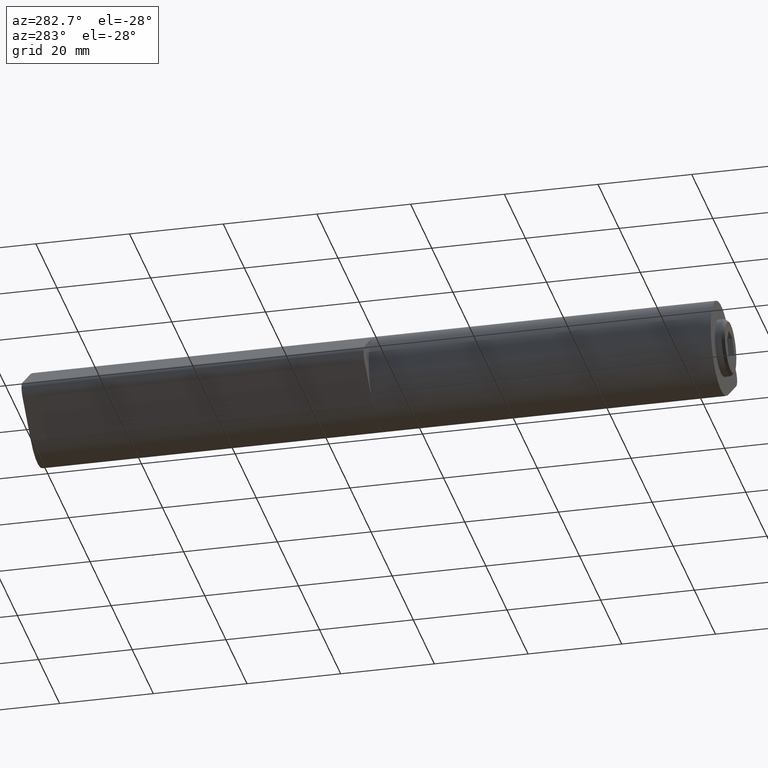
[diagram: clean part render]
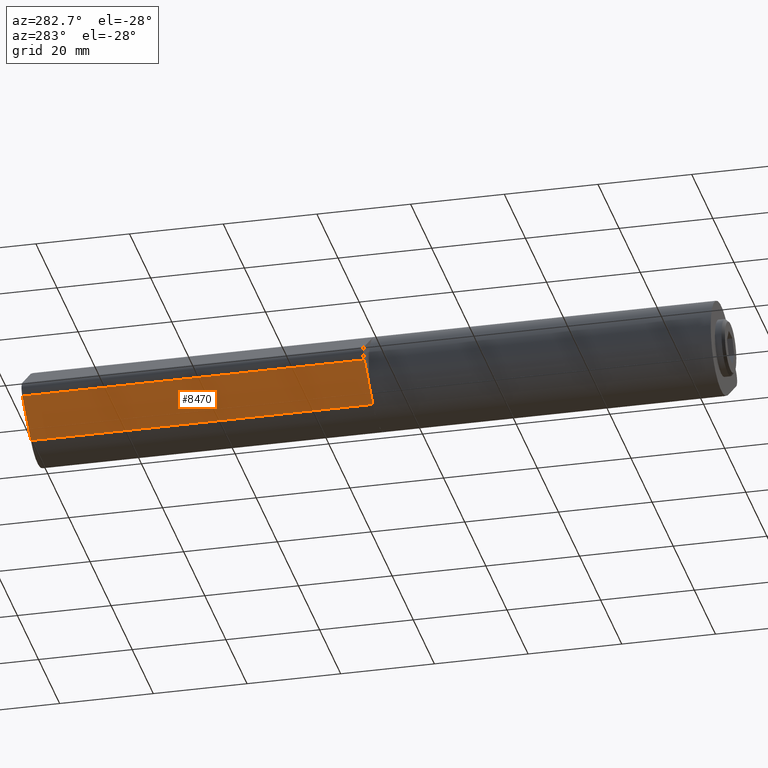
[diagram: same view with one face highlighted and labeled with its STEP entity id]
A machine part, auxiliary view. The second image highlights one B-rep face of the part: STEP entity #8470.
In plain terms, the highlighted planar face has unit normal (0.6154, 0, 0.7882).
Its self-contained STEP definition (entity closure, byte-faithful):
#235 = CARTESIAN_POINT ( 'NONE',  ( 6.153846153846156852, -36.50000000000000000, -7.882269819968920288 ) ) ;
#426 = VERTEX_POINT ( 'NONE', #10888 ) ;
#618 = CARTESIAN_POINT ( 'NONE',  ( 14.23076923076923173, 36.50000000000000000, -1.576453963993785123 ) ) ;
#1042 = EDGE_LOOP ( 'NONE', ( #4831, #10454, #3121, #1323 ) ) ;
#1323 = ORIENTED_EDGE ( 'NONE', *, *, #10942, .T. ) ;
#1360 = EDGE_CURVE ( 'NONE', #426, #13568, #3267, .T. ) ;
#2800 = LINE ( 'NONE', #11524, #8769 ) ;
#3121 = ORIENTED_EDGE ( 'NONE', *, *, #4294, .F. ) ;
#3267 = LINE ( 'NONE', #12746, #11876 ) ;
#3570 = VECTOR ( 'NONE', #8315, 1000.000000000000000 ) ;
#4265 = CARTESIAN_POINT ( 'NONE',  ( 14.23076923076923173, -36.50000000000000000, -1.576453963993785123 ) ) ;
#4294 = EDGE_CURVE ( 'NONE', #10541, #426, #5575, .T. ) ;
#4831 = ORIENTED_EDGE ( 'NONE', *, *, #9082, .T. ) ;
#5575 = LINE ( 'NONE', #9453, #3570 ) ;
#6068 = PLANE ( 'NONE',  #6812 ) ;
#6379 = FACE_OUTER_BOUND ( 'NONE', #1042, .T. ) ;
#6812 = AXIS2_PLACEMENT_3D ( 'NONE', #618, #6925, #8024 ) ;
#6925 = DIRECTION ( 'NONE',  ( -0.6153846153846154188, 0.000000000000000000, 0.7882269819968922286 ) ) ;
#7483 = DIRECTION ( 'NONE',  ( -0.000000000000000000, -1.000000000000000000, -0.000000000000000000 ) ) ;
#8024 = DIRECTION ( 'NONE',  ( 0.7882269819968922286, 0.000000000000000000, 0.6153846153846154188 ) ) ;
#8315 = DIRECTION ( 'NONE',  ( -0.7882269819968921176, 0.000000000000000000, -0.6153846153846154188 ) ) ;
#8470 = ADVANCED_FACE ( 'NONE', ( #6379 ), #6068, .F. ) ;
#8739 = DIRECTION ( 'NONE',  ( -0.7882269819968921176, 0.000000000000000000, -0.6153846153846154188 ) ) ;
#8769 = VECTOR ( 'NONE', #9340, 1000.000000000000000 ) ;
#9082 = EDGE_CURVE ( 'NONE', #12700, #13568, #9116, .T. ) ;
#9116 = LINE ( 'NONE', #4265, #11118 ) ;
#9340 = DIRECTION ( 'NONE',  ( -0.000000000000000000, -1.000000000000000000, -0.000000000000000000 ) ) ;
#9453 = CARTESIAN_POINT ( 'NONE',  ( 14.23076923076923173, 36.50000000000000000, -1.576453963993785123 ) ) ;
#9668 = CARTESIAN_POINT ( 'NONE',  ( 14.23076923076923173, -36.50000000000000000, -1.576453963993785123 ) ) ;
#10454 = ORIENTED_EDGE ( 'NONE', *, *, #1360, .F. ) ;
#10541 = VERTEX_POINT ( 'NONE', #10986 ) ;
#10888 = CARTESIAN_POINT ( 'NONE',  ( 6.153846153846156852, 36.50000000000000000, -7.882269819968920288 ) ) ;
#10942 = EDGE_CURVE ( 'NONE', #10541, #12700, #2800, .T. ) ;
#10986 = CARTESIAN_POINT ( 'NONE',  ( 14.23076923076923173, 36.50000000000000000, -1.576453963993785123 ) ) ;
#11118 = VECTOR ( 'NONE', #8739, 1000.000000000000000 ) ;
#11524 = CARTESIAN_POINT ( 'NONE',  ( 14.23076923076923173, 36.50000000000000000, -1.576453963993785123 ) ) ;
#11876 = VECTOR ( 'NONE', #7483, 1000.000000000000000 ) ;
#12700 = VERTEX_POINT ( 'NONE', #9668 ) ;
#12746 = CARTESIAN_POINT ( 'NONE',  ( 6.153846153846156852, 36.50000000000000000, -7.882269819968920288 ) ) ;
#13568 = VERTEX_POINT ( 'NONE', #235 ) ;